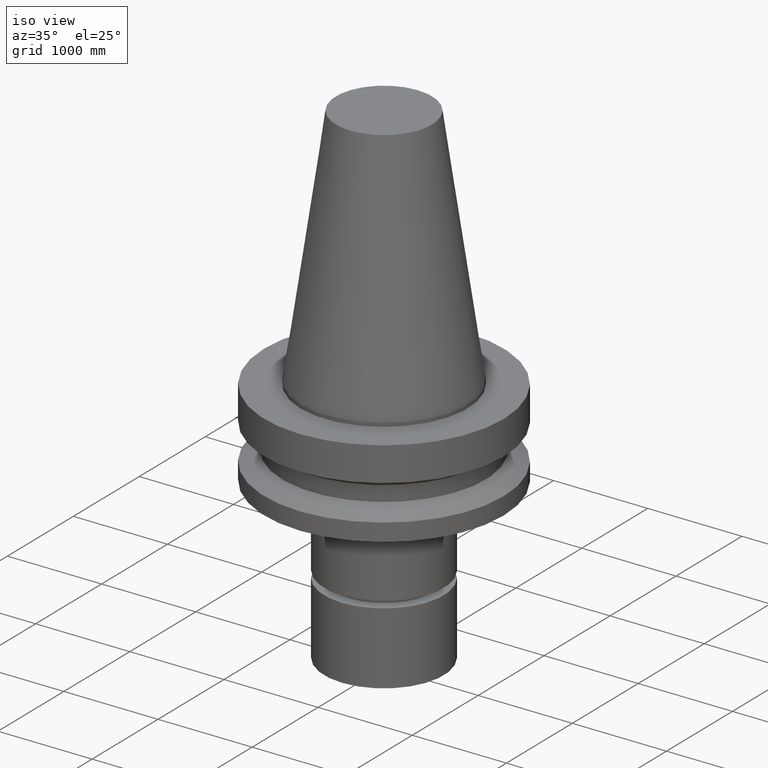
[diagram: clean part render]
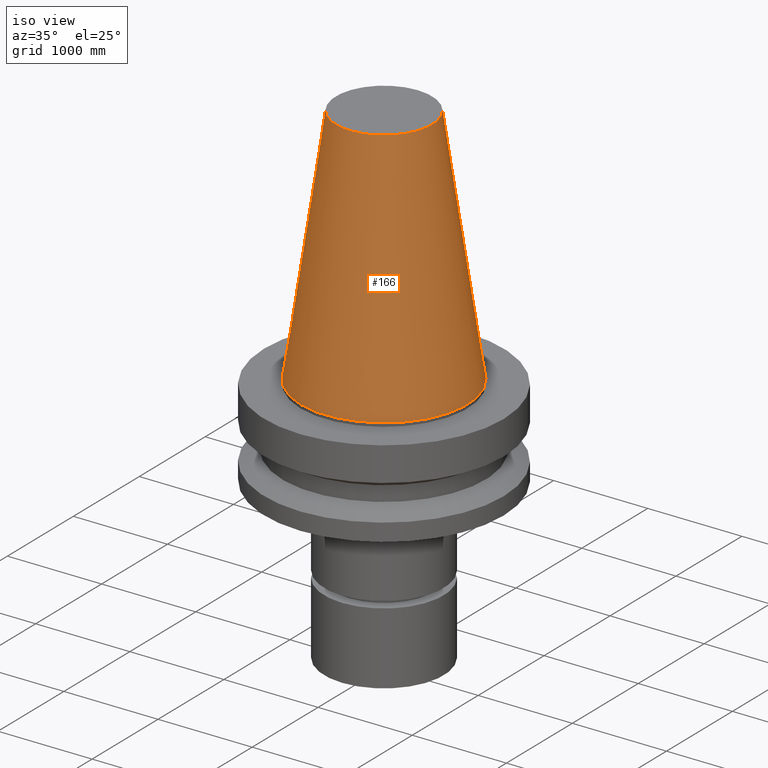
[diagram: same view with one face highlighted and labeled with its STEP entity id]
A machine part, iso view. The second image highlights one B-rep face of the part: STEP entity #166.
In plain terms, the highlighted conical surface has half-angle 8.297 deg.
Its self-contained STEP definition (entity closure, byte-faithful):
#101=EDGE_CURVE('Unnamed[1]',#243,#243,#244,.T.);
#108=EDGE_CURVE('Unnamed[1]',#253,#253,#254,.T.);
#166=ADVANCED_FACE('Unnamed[1]',(#341,#342),#343,.T.);
#243=VERTEX_POINT('',#429);
#244=CIRCLE('',#430,34.925);
#253=VERTEX_POINT('',#442);
#254=CIRCLE('',#443,20.0791666651884);
#341=FACE_BOUND('',#551,.T.);
#342=FACE_BOUND('',#552,.T.);
#343=CONICAL_SURFACE('',#553,27.5020833325942,0.144812498253157);
#429=CARTESIAN_POINT('',(-4.30483861169435E-031,34.925,4.27707894602213E-015));
#430=AXIS2_PLACEMENT_3D('',#628,#629,#630);
#442=CARTESIAN_POINT('',(-6.23345220766003E-015,20.0791666651884,101.8));
#443=AXIS2_PLACEMENT_3D('',#639,#640,#641);
#551=EDGE_LOOP('',(#737));
#552=EDGE_LOOP('',(#738));
#553=AXIS2_PLACEMENT_3D('',#739,#740,#741);
#628=CARTESIAN_POINT('',(-1.6019014550465E-046,1.29961685823755E-014,1.59157162555855E-030));
#629=DIRECTION('',(-6.12323399573677E-017,1.4068406993625E-019,1.0));
#630=DIRECTION('',(-4.81853831597758E-033,1.0,-1.4068406993625E-019));
#639=CARTESIAN_POINT('',(-6.23345220766003E-015,1.30104902206953E-014,101.8));
#640=DIRECTION('',(-6.12323399573677E-017,1.40684069919115E-019,1.0));
#641=DIRECTION('',(-4.81853831597375E-033,1.0,-1.40684069919115E-019));
#737=ORIENTED_EDGE('',*,*,#108,.F.);
#738=ORIENTED_EDGE('',*,*,#101,.T.);
#739=CARTESIAN_POINT('',(-3.11672610383001E-015,1.30033294015354E-014,50.9));
#740=DIRECTION('',(6.12323399573677E-017,-1.40684069988739E-019,-1.0));
#741=DIRECTION('',(-4.81853831597618E-033,1.0,-1.40684069988739E-019));